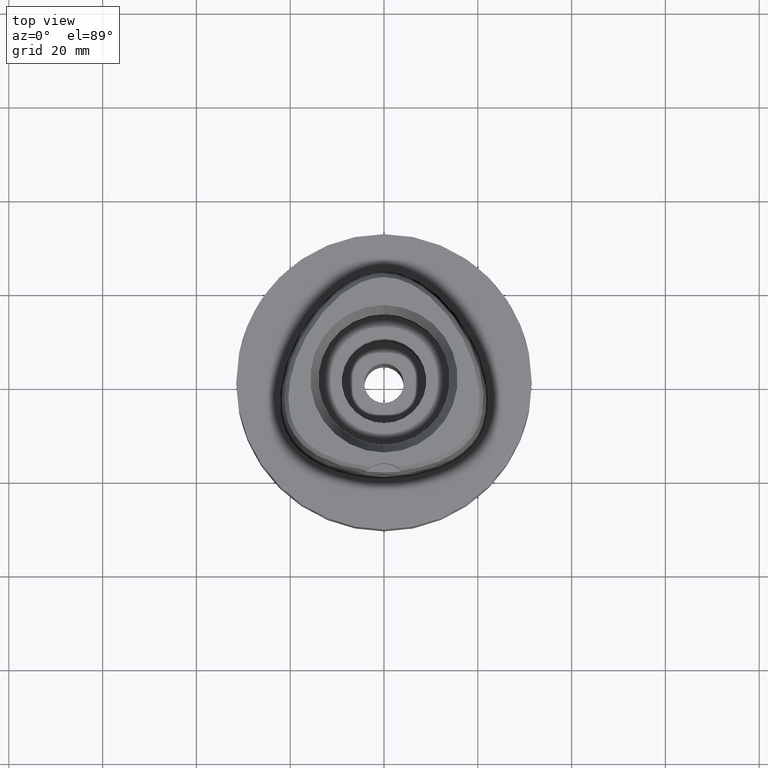
[diagram: clean part render]
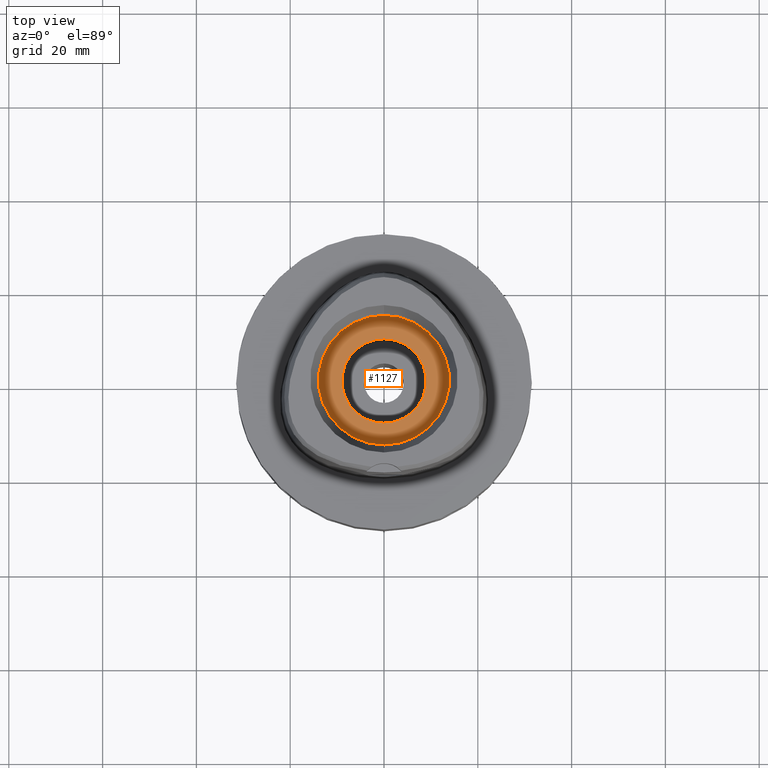
[diagram: same view with one face highlighted and labeled with its STEP entity id]
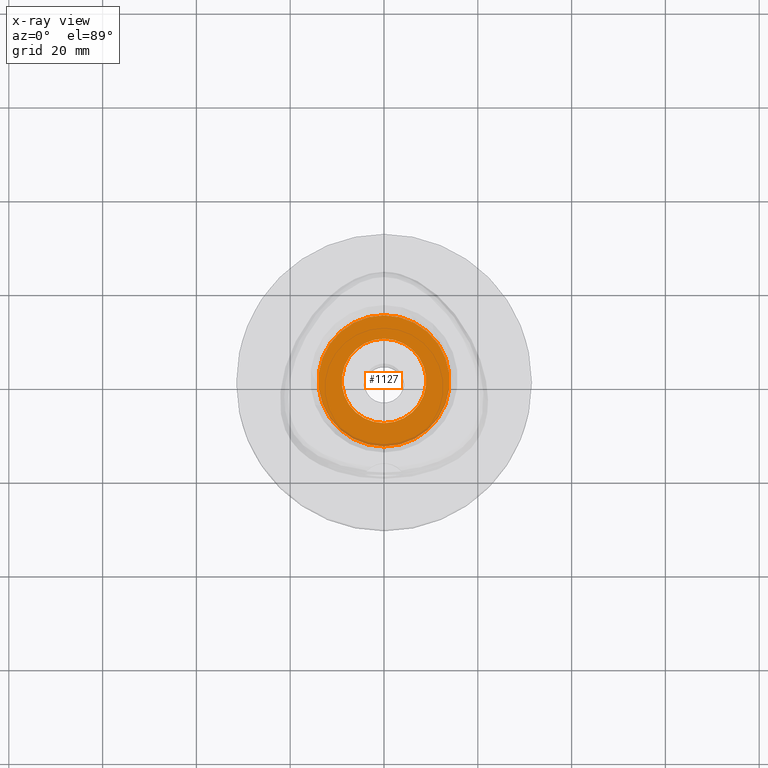
[diagram: x-ray of the same camera — body ghosted, the highlighted face saturated]
A machine part, top view. The second image highlights one B-rep face of the part: STEP entity #1127.
The next image is the same camera in x-ray: the body ghosted, the highlighted face saturated — about 3% of this face is hidden behind the body in this view.
In plain terms, the highlighted planar face has unit normal (0, 0, -1).
Its self-contained STEP definition (entity closure, byte-faithful):
#16 = CIRCLE ( 'NONE', #4266, 9.000000000000000000 ) ;
#108 = DIRECTION ( 'NONE',  ( 0.0000000000000000000, -1.000000000000000000, 0.0000000000000000000 ) ) ;
#116 = EDGE_LOOP ( 'NONE', ( #4706, #3380 ) ) ;
#164 = AXIS2_PLACEMENT_3D ( 'NONE', #436, #1976, #108 ) ;
#252 = CIRCLE ( 'NONE', #2334, 14.00000000000000000 ) ;
#436 = CARTESIAN_POINT ( 'NONE',  ( 0.0000000000000000000, 0.0000000000000000000, 11.00000000000000000 ) ) ;
#487 = FACE_BOUND ( 'NONE', #4584, .T. ) ;
#827 = VERTEX_POINT ( 'NONE', #3497 ) ;
#1051 = DIRECTION ( 'NONE',  ( 0.0000000000000000000, 0.0000000000000000000, 1.000000000000000000 ) ) ;
#1095 = DIRECTION ( 'NONE',  ( 0.0000000000000000000, -1.000000000000000000, 0.0000000000000000000 ) ) ;
#1127 = ADVANCED_FACE ( 'NONE', ( #3490, #487 ), #1954, .F. ) ;
#1289 = AXIS2_PLACEMENT_3D ( 'NONE', #3320, #1051, #1095 ) ;
#1490 = CARTESIAN_POINT ( 'NONE',  ( 0.0000000000000000000, 0.0000000000000000000, 11.00000000000000000 ) ) ;
#1538 = DIRECTION ( 'NONE',  ( 0.0000000000000000000, 0.0000000000000000000, -1.000000000000000000 ) ) ;
#1597 = VERTEX_POINT ( 'NONE', #3692 ) ;
#1752 = DIRECTION ( 'NONE',  ( 0.0000000000000000000, 1.000000000000000000, 0.0000000000000000000 ) ) ;
#1794 = VERTEX_POINT ( 'NONE', #3077 ) ;
#1954 = PLANE ( 'NONE',  #164 ) ;
#1976 = DIRECTION ( 'NONE',  ( 0.0000000000000000000, 0.0000000000000000000, -1.000000000000000000 ) ) ;
#2086 = CIRCLE ( 'NONE', #1289, 9.000000000000000000 ) ;
#2214 = EDGE_CURVE ( 'NONE', #1597, #827, #2568, .T. ) ;
#2334 = AXIS2_PLACEMENT_3D ( 'NONE', #1490, #1538, #2994 ) ;
#2407 = ORIENTED_EDGE ( 'NONE', *, *, #3400, .F. ) ;
#2568 = CIRCLE ( 'NONE', #3851, 14.00000000000000000 ) ;
#2780 = EDGE_CURVE ( 'NONE', #827, #1597, #252, .T. ) ;
#2934 = CARTESIAN_POINT ( 'NONE',  ( 0.0000000000000000000, 0.0000000000000000000, 11.00000000000000000 ) ) ;
#2958 = DIRECTION ( 'NONE',  ( 0.0000000000000000000, 0.0000000000000000000, -1.000000000000000000 ) ) ;
#2994 = DIRECTION ( 'NONE',  ( 0.0000000000000000000, 1.000000000000000000, 0.0000000000000000000 ) ) ;
#3077 = CARTESIAN_POINT ( 'NONE',  ( 0.0000000000000000000, -9.000000000000000000, 11.00000000000000000 ) ) ;
#3320 = CARTESIAN_POINT ( 'NONE',  ( 0.0000000000000000000, 0.0000000000000000000, 11.00000000000000000 ) ) ;
#3352 = ORIENTED_EDGE ( 'NONE', *, *, #3834, .F. ) ;
#3380 = ORIENTED_EDGE ( 'NONE', *, *, #2780, .F. ) ;
#3400 = EDGE_CURVE ( 'NONE', #4361, #1794, #16, .T. ) ;
#3424 = CARTESIAN_POINT ( 'NONE',  ( 0.0000000000000000000, 9.000000000000000000, 11.00000000000000000 ) ) ;
#3490 = FACE_OUTER_BOUND ( 'NONE', #116, .T. ) ;
#3497 = CARTESIAN_POINT ( 'NONE',  ( 0.0000000000000000000, 14.00000000000000000, 11.00000000000000000 ) ) ;
#3643 = CARTESIAN_POINT ( 'NONE',  ( 0.0000000000000000000, 0.0000000000000000000, 11.00000000000000000 ) ) ;
#3692 = CARTESIAN_POINT ( 'NONE',  ( 0.0000000000000000000, -14.00000000000000000, 11.00000000000000000 ) ) ;
#3834 = EDGE_CURVE ( 'NONE', #1794, #4361, #2086, .T. ) ;
#3851 = AXIS2_PLACEMENT_3D ( 'NONE', #2934, #2958, #4492 ) ;
#4266 = AXIS2_PLACEMENT_3D ( 'NONE', #3643, #4371, #1752 ) ;
#4361 = VERTEX_POINT ( 'NONE', #3424 ) ;
#4371 = DIRECTION ( 'NONE',  ( 0.0000000000000000000, 0.0000000000000000000, 1.000000000000000000 ) ) ;
#4492 = DIRECTION ( 'NONE',  ( 0.0000000000000000000, -1.000000000000000000, 0.0000000000000000000 ) ) ;
#4584 = EDGE_LOOP ( 'NONE', ( #3352, #2407 ) ) ;
#4706 = ORIENTED_EDGE ( 'NONE', *, *, #2214, .F. ) ;